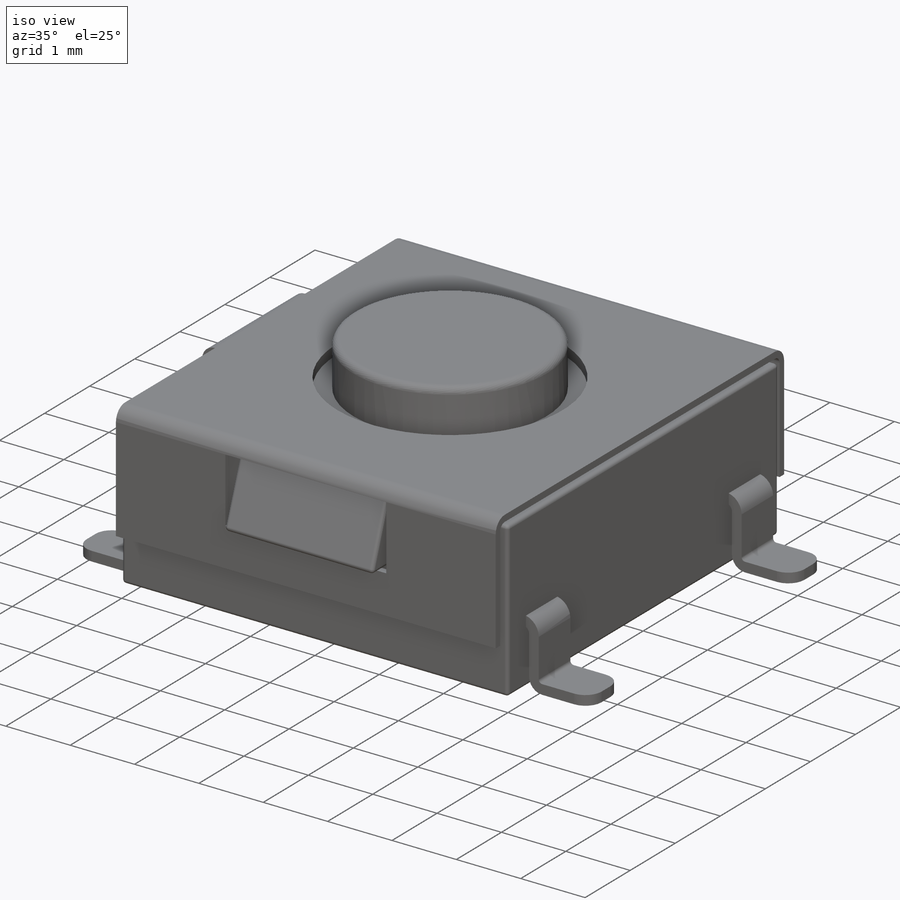
[diagram: iso view]
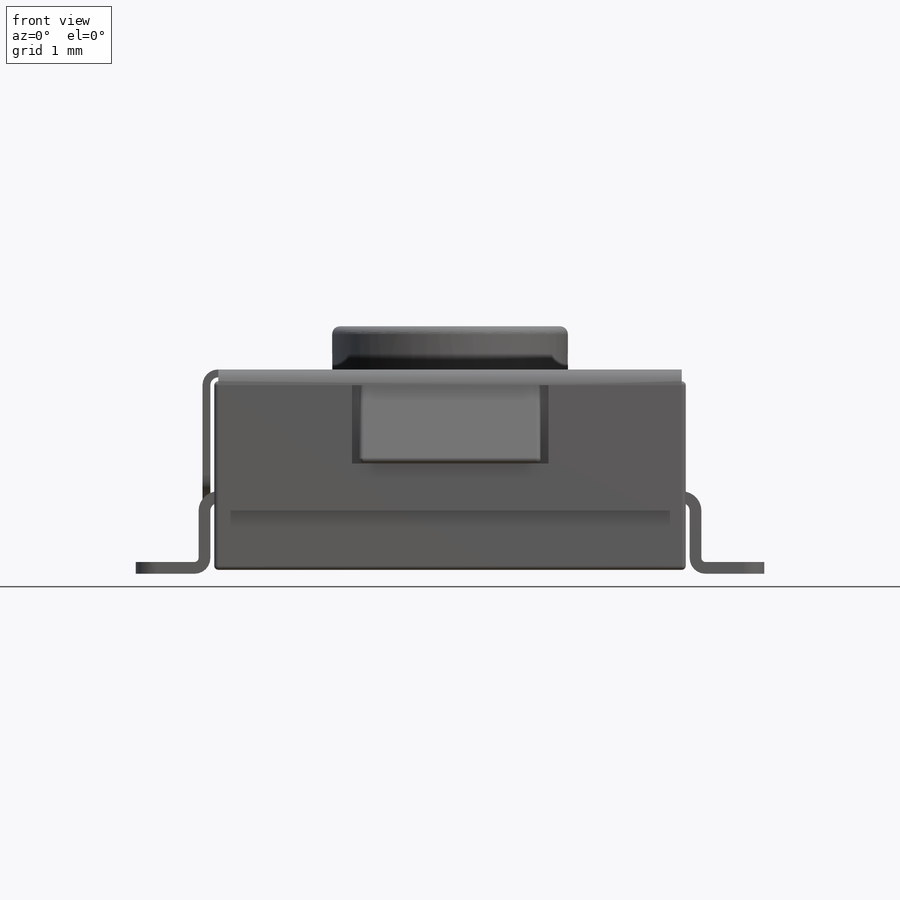
[diagram: front view]
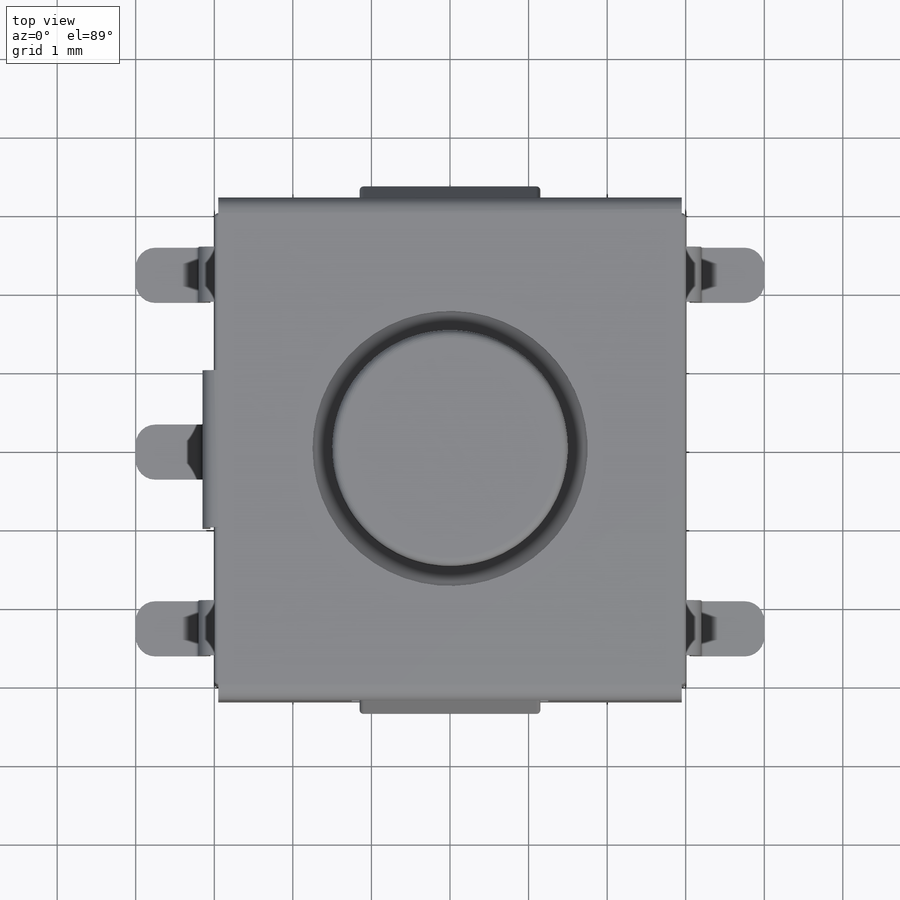
[diagram: top view]
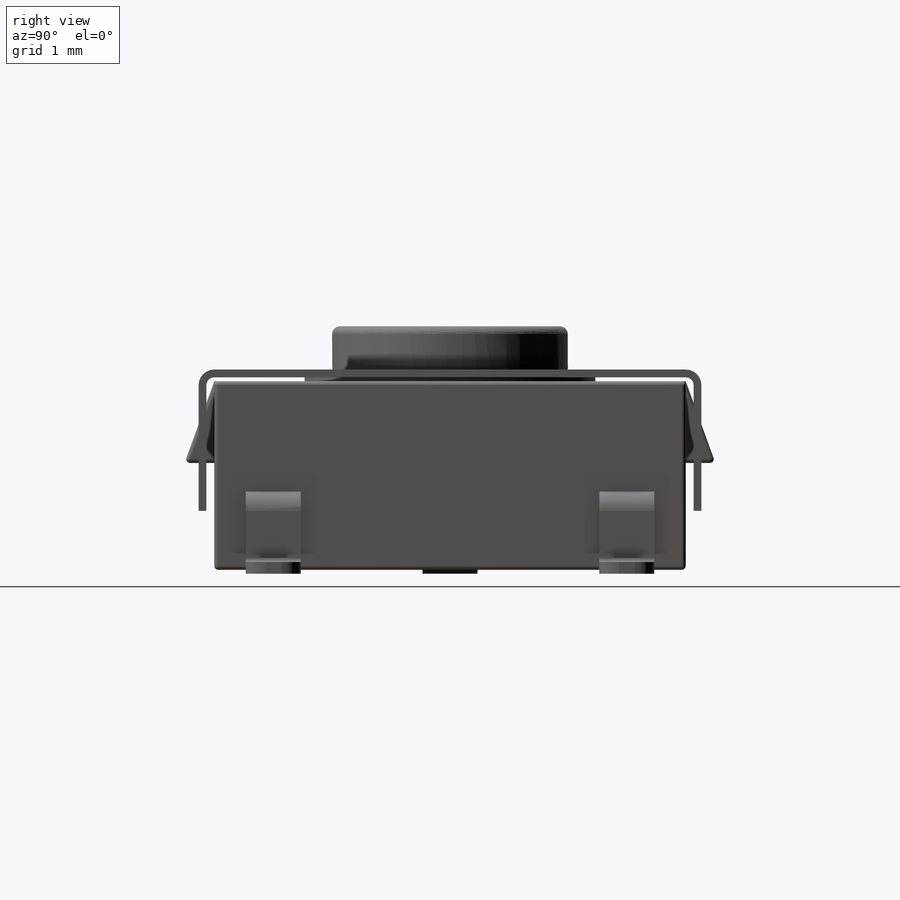
[diagram: right view]
SOLIDWORKS PART (.sldprt)
format: sldprt  version: not decoded by parser v0  size: 700,416 bytes
history: native  units: mm
features: sketch x12, extrude x7, cut_extrude x5, fillet x4, mirror x2, material x1, plane x1 (+11 scaffold rows collapsed)
feature tree (43):
  scaffold x11  (default folders/planes/origin — collapsed)
  material  "Material <not specified>"
  sketch  "Sketch1"  dims[D1=6.0mm D2=6.0mm]
  extrude  "Boss-Extrude1"  Depth=2.4mm
  sketch  "Sketch2"  dims[D4=0.1mm D5=0.2mm D1=0.05mm D2=0.05mm D3=0.05mm D6=2.5mm D8=8.0mm D7=0.1mm]
  extrude  "Boss-Extrude2"  Depth=6mm
  sketch  "Sketch3"  dims[D1=3.5mm]
  cut_extrude  "Cut-Extrude1"  Depth=0.1mm
  sketch  "Sketch12"  dims[D1=0.1mm]
  extrude  "Boss-Extrude7"  [1 undecoded]
  sketch  "Sketch4"  dims[D1=3.0mm]
  extrude  "Boss-Extrude3"  Depth=0.7mm
  fillet  "Fillet1"  Radius=0.1mm
  sketch  "Sketch7"  dims[D2=0.1mm D1=0.0mm]
  cut_extrude  "Cut-Extrude4"  [1 undecoded]
  sketch  "Sketch6"  dims[D2=0.1mm D1=0.0mm]
  cut_extrude  "Cut-Extrude3"  Depth=2mm
  sketch  "Sketch5"  dims[c1.D3=0.2mm c1.D1=2.6mm c1.D2=~2.226654mm c2.D1=2.6mm c2.D2=~2.129986mm c3.D1=~1.017885mm c3.D2=~0.547185mm c4.D1=0.35mm c4.D2=1.0mm]
  cut_extrude  "Cut-Extrude2"  [1 undecoded]
  plane  "Plane1"  Offset=2.25mm
  sketch  "Sketch11"  dims[D3=0.2mm D4=0.1mm D1=8.0mm D2=0.05mm D6=0.05mm D5=0.15mm]
  extrude  "Boss-Extrude6"  Depth=0.7mm
  fillet  "Fillet2"  Radius=0.25mm
  mirror  "Mirror1"
  sketch  "Sketch8"  dims[c1.D1=0.1mm c1.D2=1.8mm c1.D3=~0.228034mm c2.D2=1.8mm]
  extrude  "Boss-Extrude4"  [1 undecoded]
  sketch  "Sketch9"  dims[c1.D1=~0.878494mm c1.D2=~1.991629mm c2.D1=2.5mm c2.D2=1.0mm]
  cut_extrude  "Cut-Extrude5"  Depth=0.1mm
  mirror  "Mirror2"
  sketch  "Sketch10"  dims[c1.D1=0.15mm c1.D2=1.25mm c1.D3=1.1mm c2.D3=20.0deg c2.D4=~0.196751mm c2.D2=0.01mm]
  extrude  "Boss-Extrude5"  Depth=2.3mm
  fillet  "Fillet4"  Radius=0.05mm
  fillet  "Fillet5"  Radius=0.05mm
decode coverage: 24 of 30 modeling features carry decoded parameters
note: ~ marks probable driven/reference dimensions
note: 4 parameter values undecoded
summary: no parameter record found for 4 features
note: suppression state not decoded; provenance and decode notes live in map.json
